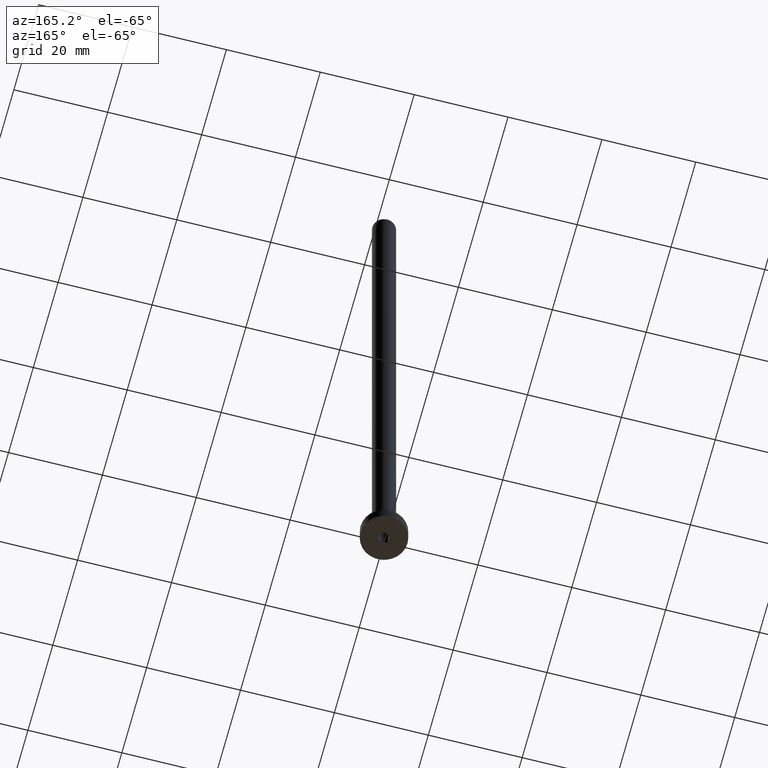
[diagram: clean part render]
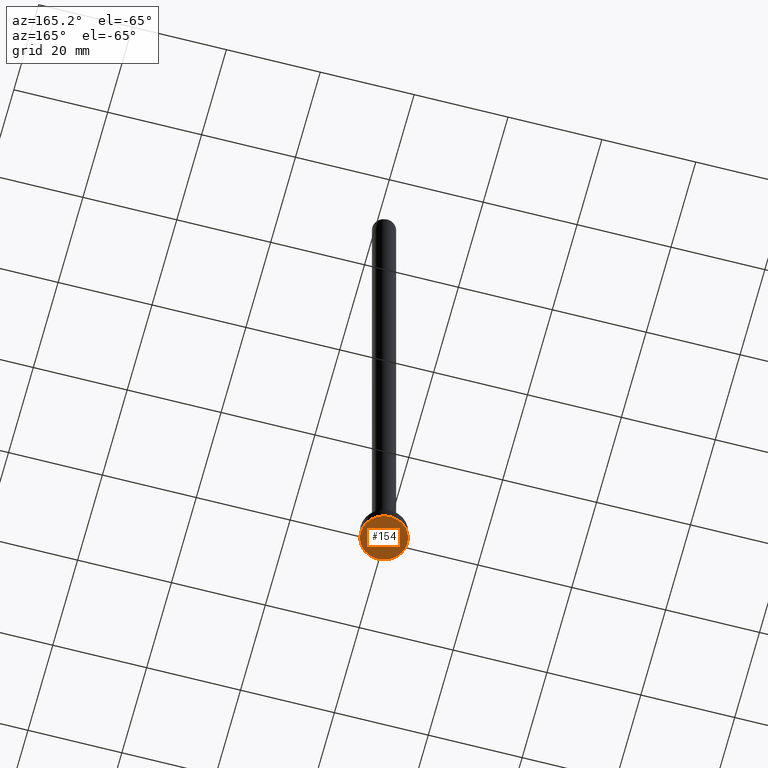
[diagram: same view with one face highlighted and labeled with its STEP entity id]
A machine part, auxiliary view. The second image highlights one B-rep face of the part: STEP entity #154.
In plain terms, the highlighted planar face has unit normal (0, 0, 1).
Its self-contained STEP definition (entity closure, byte-faithful):
#8 = DIRECTION ( 'NONE',  ( 0.000000000000000000, 0.000000000000000000, 1.000000000000000000 ) ) ;
#17 = CARTESIAN_POINT ( 'NONE',  ( 0.000000000000000000, 0.000000000000000000, 0.000000000000000000 ) ) ;
#27 = AXIS2_PLACEMENT_3D ( 'NONE', #17, #125, #275 ) ;
#65 = EDGE_LOOP ( 'NONE', ( #174, #288 ) ) ;
#75 = VERTEX_POINT ( 'NONE', #314 ) ;
#81 = CARTESIAN_POINT ( 'NONE',  ( 0.000000000000000000, 0.000000000000000000, 0.000000000000000000 ) ) ;
#107 = DIRECTION ( 'NONE',  ( -0.000000000000000000, -0.000000000000000000, -1.000000000000000000 ) ) ;
#111 = ORIENTED_EDGE ( 'NONE', *, *, #150, .F. ) ;
#124 = AXIS2_PLACEMENT_3D ( 'NONE', #81, #8, #265 ) ;
#125 = DIRECTION ( 'NONE',  ( 0.000000000000000000, 0.000000000000000000, 1.000000000000000000 ) ) ;
#150 = EDGE_CURVE ( 'NONE', #223, #262, #289, .T. ) ;
#154 = ADVANCED_FACE ( 'NONE', ( #444, #277 ), #197, .F. ) ;
#163 = AXIS2_PLACEMENT_3D ( 'NONE', #417, #412, #414 ) ;
#174 = ORIENTED_EDGE ( 'NONE', *, *, #321, .F. ) ;
#175 = DIRECTION ( 'NONE',  ( 1.000000000000000000, 0.000000000000000000, 0.000000000000000000 ) ) ;
#197 = PLANE ( 'NONE',  #163 ) ;
#208 = DIRECTION ( 'NONE',  ( 1.000000000000000000, 0.000000000000000000, 0.000000000000000000 ) ) ;
#210 = CARTESIAN_POINT ( 'NONE',  ( 0.000000000000000000, 0.000000000000000000, 0.000000000000000000 ) ) ;
#223 = VERTEX_POINT ( 'NONE', #326 ) ;
#252 = CIRCLE ( 'NONE', #276, 1.149999999999999911 ) ;
#262 = VERTEX_POINT ( 'NONE', #456 ) ;
#265 = DIRECTION ( 'NONE',  ( 1.000000000000000000, 0.000000000000000000, 0.000000000000000000 ) ) ;
#275 = DIRECTION ( 'NONE',  ( 1.000000000000000000, 0.000000000000000000, 0.000000000000000000 ) ) ;
#276 = AXIS2_PLACEMENT_3D ( 'NONE', #210, #355, #175 ) ;
#277 = FACE_OUTER_BOUND ( 'NONE', #431, .T. ) ;
#280 = EDGE_CURVE ( 'NONE', #75, #293, #452, .T. ) ;
#288 = ORIENTED_EDGE ( 'NONE', *, *, #280, .F. ) ;
#289 = CIRCLE ( 'NONE', #27, 5.000000000000000000 ) ;
#293 = VERTEX_POINT ( 'NONE', #353 ) ;
#314 = CARTESIAN_POINT ( 'NONE',  ( 1.149999999999999911, 1.408343819019456028E-16, 0.000000000000000000 ) ) ;
#321 = EDGE_CURVE ( 'NONE', #293, #75, #252, .T. ) ;
#326 = CARTESIAN_POINT ( 'NONE',  ( 5.000000000000000000, 6.123233995736766282E-16, 0.000000000000000000 ) ) ;
#329 = CIRCLE ( 'NONE', #124, 5.000000000000000000 ) ;
#353 = CARTESIAN_POINT ( 'NONE',  ( -1.149999999999999911, 0.000000000000000000, 0.000000000000000000 ) ) ;
#355 = DIRECTION ( 'NONE',  ( -0.000000000000000000, -0.000000000000000000, -1.000000000000000000 ) ) ;
#383 = AXIS2_PLACEMENT_3D ( 'NONE', #388, #107, #208 ) ;
#388 = CARTESIAN_POINT ( 'NONE',  ( 0.000000000000000000, 0.000000000000000000, 0.000000000000000000 ) ) ;
#397 = EDGE_CURVE ( 'NONE', #262, #223, #329, .T. ) ;
#412 = DIRECTION ( 'NONE',  ( 0.000000000000000000, 0.000000000000000000, 1.000000000000000000 ) ) ;
#414 = DIRECTION ( 'NONE',  ( 1.000000000000000000, 0.000000000000000000, -0.000000000000000000 ) ) ;
#417 = CARTESIAN_POINT ( 'NONE',  ( 0.000000000000000000, 0.000000000000000000, 0.000000000000000000 ) ) ;
#431 = EDGE_LOOP ( 'NONE', ( #433, #111 ) ) ;
#433 = ORIENTED_EDGE ( 'NONE', *, *, #397, .F. ) ;
#444 = FACE_BOUND ( 'NONE', #65, .T. ) ;
#452 = CIRCLE ( 'NONE', #383, 1.149999999999999911 ) ;
#456 = CARTESIAN_POINT ( 'NONE',  ( -5.000000000000000000, 0.000000000000000000, 0.000000000000000000 ) ) ;